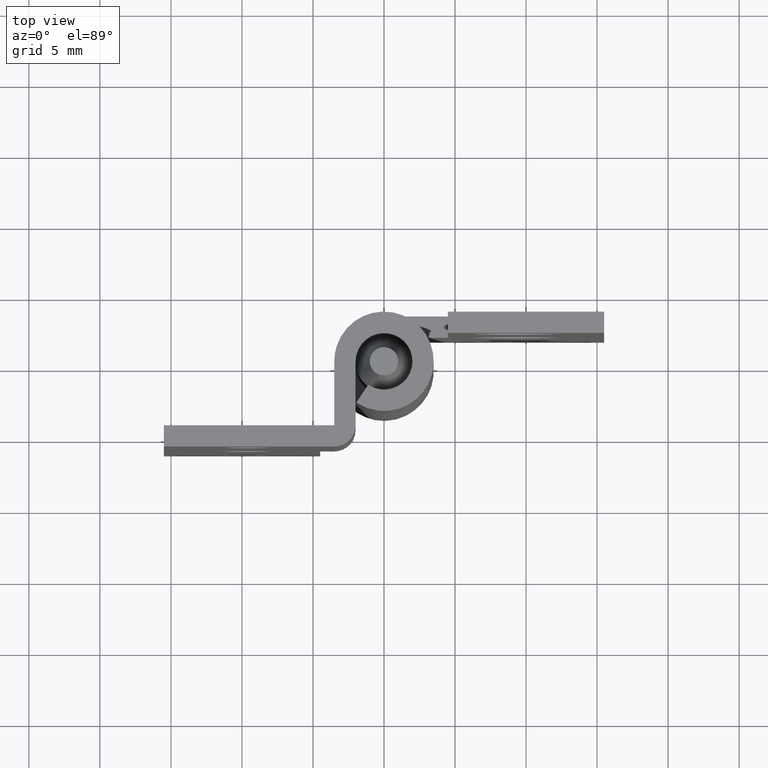
[diagram: clean part render]
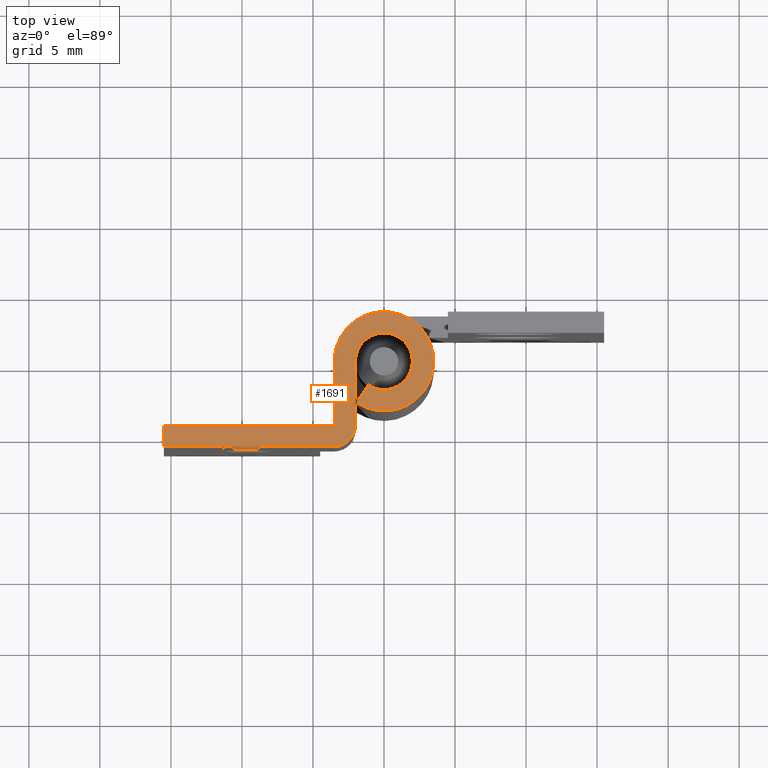
[diagram: same view with one face highlighted and labeled with its STEP entity id]
A machine part, top view. The second image highlights one B-rep face of the part: STEP entity #1691.
In plain terms, the highlighted face is a freeform B-spline surface patch.
Its self-contained STEP definition (entity closure, byte-faithful):
#1452=CARTESIAN_POINT('',(-2.0,-4.499999999999915,40.0));
#1453=VERTEX_POINT('',#1452);
#1459=CARTESIAN_POINT('',(-3.500000000000000,-5.999999999999920,40.0));
#1460=VERTEX_POINT('',#1459);
#1461=CARTESIAN_POINT('',(-3.500000000000000,-5.999999999999915,40.0));
#1462=CARTESIAN_POINT('',(-2.000000000000000,-5.999999999999914,39.999999999999993));
#1463=CARTESIAN_POINT('',(-2.0,-4.499999999999915,40.0));
#1471=(BOUNDED_CURVE()B_SPLINE_CURVE(2,(#1461,#1462,#1463),.UNSPECIFIED.,.F.,.U.)CURVE()GEOMETRIC_REPRESENTATION_ITEM()QUASI_UNIFORM_CURVE()RATIONAL_B_SPLINE_CURVE((1.0,0.707106781186548,1.0))REPRESENTATION_ITEM(''));
#1472=EDGE_CURVE('',#1460,#1453,#1471,.T.);
#1601=CARTESIAN_POINT('',(-16.448907274799211,3.973775311020320,40.0));
#1602=CARTESIAN_POINT('',(4.446051160105202,3.973775311020320,40.0));
#1603=CARTESIAN_POINT('',(-16.448907274799211,-6.474489571780958,40.0));
#1604=CARTESIAN_POINT('',(4.446051160105202,-6.474489571780958,40.0));
#1605=B_SPLINE_SURFACE_WITH_KNOTS('',1,1,((#1601,#1603),(#1602,#1604)),.UNSPECIFIED.,.F.,.F.,.U.,(2,2),(2,2),(0.0,20.894958434904410),(0.0,10.448264882801279),.UNSPECIFIED.);
#1606=CARTESIAN_POINT('',(-15.500000000000000,-5.999999999999920,40.0));
#1607=VERTEX_POINT('',#1606);
#1608=CARTESIAN_POINT('',(-15.500000000000000,-5.999999999999920,40.0));
#1609=CARTESIAN_POINT('',(-3.500000000000000,-5.999999999999920,40.0));
#1610=QUASI_UNIFORM_CURVE('',1,(#1608,#1609),.UNSPECIFIED.,.F.,.U.);
#1611=EDGE_CURVE('',#1607,#1460,#1610,.T.);
#1612=ORIENTED_EDGE('',*,*,#1611,.T.);
#1613=ORIENTED_EDGE('',*,*,#1472,.T.);
#1614=CARTESIAN_POINT('',(-2.0,0.0,40.0));
#1615=VERTEX_POINT('',#1614);
#1616=CARTESIAN_POINT('',(-2.0,-4.499999999999915,40.0));
#1617=CARTESIAN_POINT('',(-2.0,0.0,40.0));
#1618=QUASI_UNIFORM_CURVE('',1,(#1616,#1617),.UNSPECIFIED.,.F.,.U.);
#1619=EDGE_CURVE('',#1453,#1615,#1618,.T.);
#1620=ORIENTED_EDGE('',*,*,#1619,.T.);
#1621=CARTESIAN_POINT('',(-1.114285714285714,-1.660833329066700,40.0));
#1622=VERTEX_POINT('',#1621);
#1623=CARTESIAN_POINT('',(-1.114285714285714,-1.660833329066700,40.0));
#1624=CARTESIAN_POINT('',(0.182473655134446,-2.530854670114225,40.0));
#1625=CARTESIAN_POINT('',(1.341013097056097,-1.483807222493547,40.0));
#1626=CARTESIAN_POINT('',(2.499552538977749,-0.436759774872868,40.0));
#1627=CARTESIAN_POINT('',(1.764733893335115,0.941123948114320,40.0));
#1628=CARTESIAN_POINT('',(1.029915247692482,2.319007671101509,40.0));
#1629=CARTESIAN_POINT('',(-0.485042376153759,1.940292218542124,40.0));
#1630=CARTESIAN_POINT('',(-2.000000000000000,1.561576765982738,40.0));
#1631=CARTESIAN_POINT('',(-2.0,0.0,40.0));
#1639=(BOUNDED_CURVE()B_SPLINE_CURVE(2,(#1623,#1624,#1625,#1626,#1627,#1628,#1629,#1630,#1631),.UNSPECIFIED.,.F.,.U.)B_SPLINE_CURVE_WITH_KNOTS((3,2,2,2,3),(0.0,0.250000000000000,0.500000000000000,0.750000000000000,1.0),.UNSPECIFIED.)CURVE()GEOMETRIC_REPRESENTATION_ITEM()RATIONAL_B_SPLINE_CURVE((1.0,0.788200858942973,1.0,0.788200858942973,1.0,0.788200858942973,1.0,0.788200858942973,1.0))REPRESENTATION_ITEM(''));
#1640=EDGE_CURVE('',#1622,#1615,#1639,.T.);
#1641=ORIENTED_EDGE('',*,*,#1640,.F.);
#1642=CARTESIAN_POINT('',(-1.950000000000000,-2.906458325866725,40.0));
#1643=VERTEX_POINT('',#1642);
#1644=CARTESIAN_POINT('',(-1.114285714285714,-1.660833329066700,40.0));
#1645=CARTESIAN_POINT('',(-1.950000000000000,-2.906458325866725,40.0));
#1646=QUASI_UNIFORM_CURVE('',1,(#1644,#1645),.UNSPECIFIED.,.F.,.U.);
#1647=EDGE_CURVE('',#1622,#1643,#1646,.T.);
#1648=ORIENTED_EDGE('',*,*,#1647,.T.);
#1649=CARTESIAN_POINT('',(-3.500000000000000,0.0,40.0));
#1650=VERTEX_POINT('',#1649);
#1651=CARTESIAN_POINT('',(-1.950000000000000,-2.906458325866725,40.0));
#1652=CARTESIAN_POINT('',(0.319328896485281,-4.428995672699894,40.0));
#1653=CARTESIAN_POINT('',(2.346772919848170,-2.596662639363707,40.0));
#1654=CARTESIAN_POINT('',(4.374216943211060,-0.764329606027519,40.0));
#1655=CARTESIAN_POINT('',(3.088284313336452,1.646966909200060,40.0));
#1656=CARTESIAN_POINT('',(1.802351683461844,4.058263424427640,40.0));
#1657=CARTESIAN_POINT('',(-0.848824158269079,3.395511382448716,40.0));
#1658=CARTESIAN_POINT('',(-3.500000000000000,2.732759340469792,40.0));
#1659=CARTESIAN_POINT('',(-3.500000000000000,0.0,40.0));
#1667=(BOUNDED_CURVE()B_SPLINE_CURVE(2,(#1651,#1652,#1653,#1654,#1655,#1656,#1657,#1658,#1659),.UNSPECIFIED.,.F.,.U.)B_SPLINE_CURVE_WITH_KNOTS((3,2,2,2,3),(0.0,0.250000000000000,0.500000000000000,0.750000000000000,1.0),.UNSPECIFIED.)CURVE()GEOMETRIC_REPRESENTATION_ITEM()RATIONAL_B_SPLINE_CURVE((1.0,0.788200858942973,1.0,0.788200858942973,1.0,0.788200858942973,1.0,0.788200858942973,1.0))REPRESENTATION_ITEM(''));
#1668=EDGE_CURVE('',#1643,#1650,#1667,.T.);
#1669=ORIENTED_EDGE('',*,*,#1668,.T.);
#1670=CARTESIAN_POINT('',(-3.500000000000000,-4.500000000000000,40.0));
#1671=VERTEX_POINT('',#1670);
#1672=CARTESIAN_POINT('',(-3.500000000000000,0.0,40.0));
#1673=CARTESIAN_POINT('',(-3.500000000000000,-4.500000000000000,40.0));
#1674=QUASI_UNIFORM_CURVE('',1,(#1672,#1673),.UNSPECIFIED.,.F.,.U.);
#1675=EDGE_CURVE('',#1650,#1671,#1674,.T.);
#1676=ORIENTED_EDGE('',*,*,#1675,.T.);
#1677=CARTESIAN_POINT('',(-15.500000000000000,-4.500000000000000,40.0));
#1678=VERTEX_POINT('',#1677);
#1679=CARTESIAN_POINT('',(-3.500000000000000,-4.500000000000000,40.0));
#1680=CARTESIAN_POINT('',(-15.500000000000000,-4.500000000000000,40.0));
#1681=QUASI_UNIFORM_CURVE('',1,(#1679,#1680),.UNSPECIFIED.,.F.,.U.);
#1682=EDGE_CURVE('',#1671,#1678,#1681,.T.);
#1683=ORIENTED_EDGE('',*,*,#1682,.T.);
#1684=CARTESIAN_POINT('',(-15.500000000000000,-4.500000000000000,40.0));
#1685=CARTESIAN_POINT('',(-15.500000000000000,-5.999999999999920,40.0));
#1686=QUASI_UNIFORM_CURVE('',1,(#1684,#1685),.UNSPECIFIED.,.F.,.U.);
#1687=EDGE_CURVE('',#1678,#1607,#1686,.T.);
#1688=ORIENTED_EDGE('',*,*,#1687,.T.);
#1689=EDGE_LOOP('',(#1612,#1613,#1620,#1641,#1648,#1669,#1676,#1683,#1688));
#1690=FACE_OUTER_BOUND('',#1689,.T.);
#1691=ADVANCED_FACE('',(#1690),#1605,.F.);